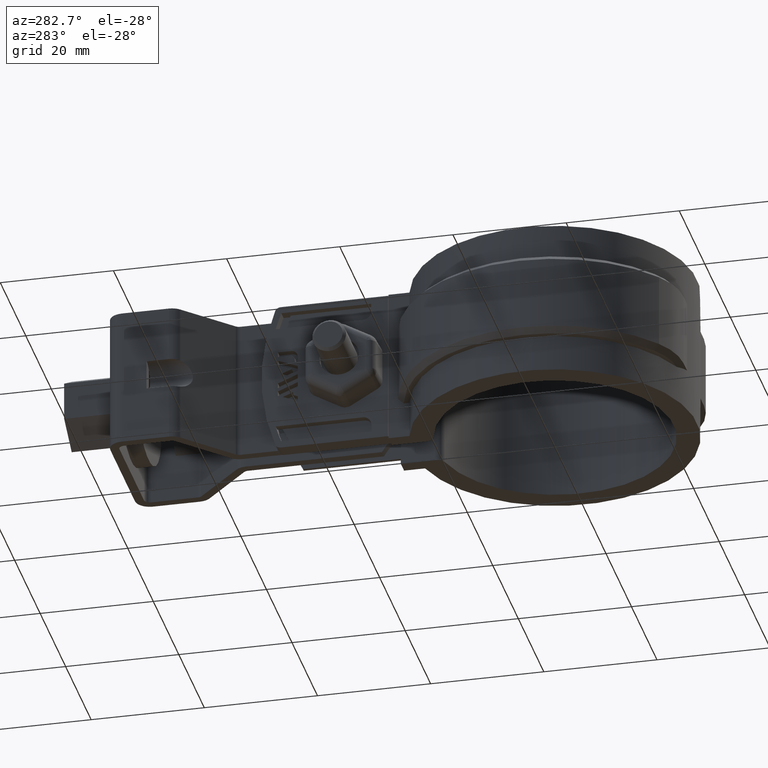
[diagram: clean part render]
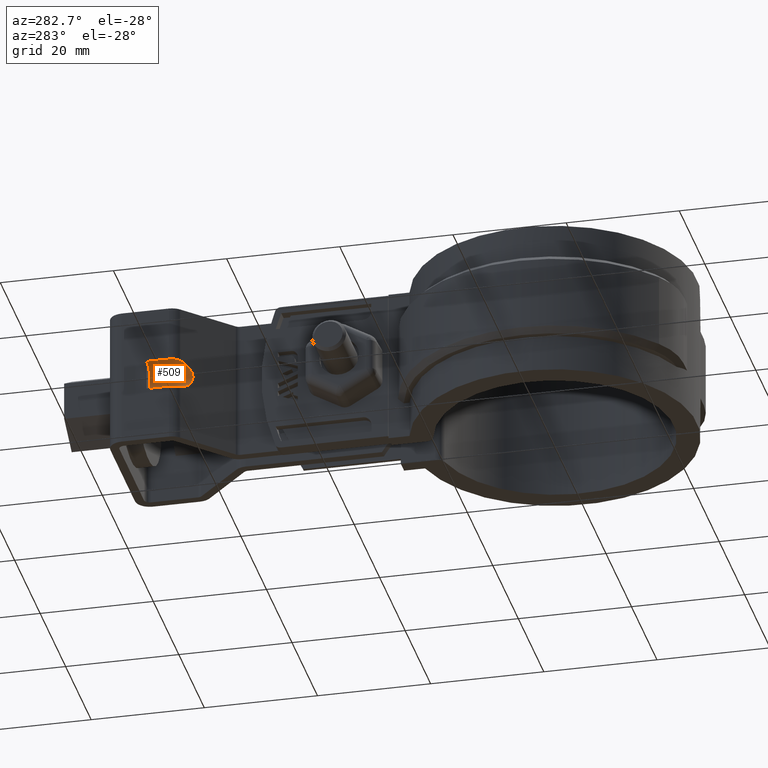
[diagram: same view with one face highlighted and labeled with its STEP entity id]
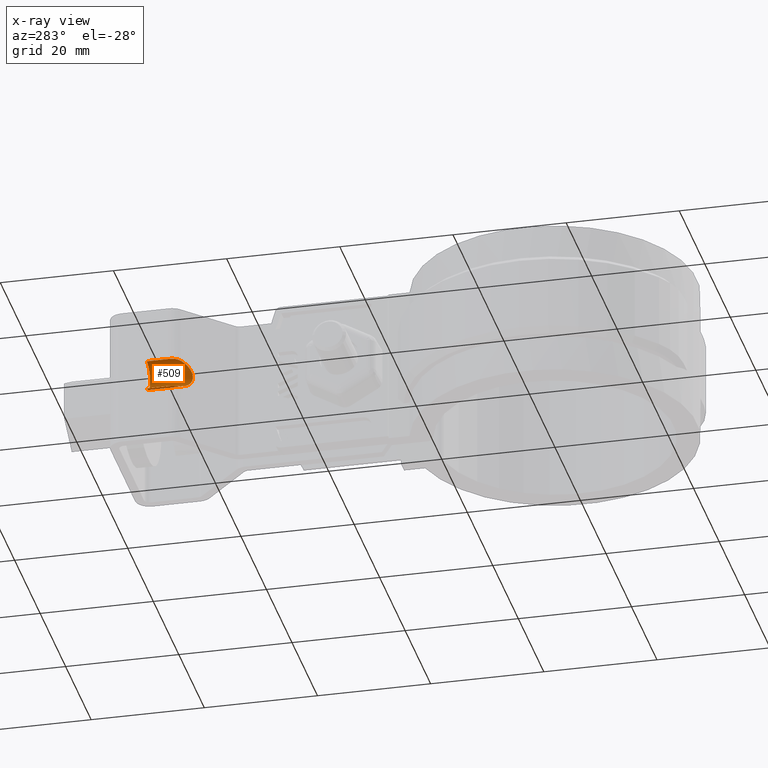
[diagram: x-ray of the same camera — body ghosted, the highlighted face saturated]
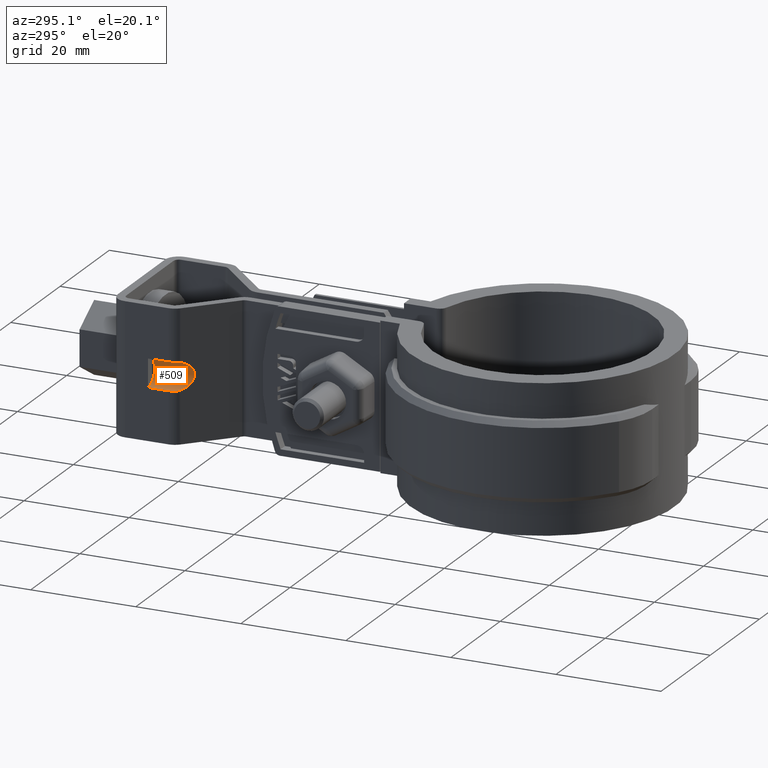
[diagram: same view with one face highlighted and labeled with its STEP entity id]
A machine part, auxiliary view. The second image highlights one B-rep face of the part: STEP entity #509.
The next image is the same camera in x-ray: the body ghosted, the highlighted face saturated — about 0% of this face is hidden behind the body in this view.
A second angle (auxiliary view) of the same face is appended — the face is thin or edge-on in the first view.
In plain terms, the highlighted cylindrical surface (edge-blend (fillet) strip) has radius 2.65 mm, axis along (0, -1, -0).
Its self-contained STEP definition (entity closure, byte-faithful):
#509 = ADVANCED_FACE( '', ( #999 ), #1000, .F. );
#999 = FACE_OUTER_BOUND( '', #2092, .T. );
#1000 = CYLINDRICAL_SURFACE( '', #2093, 2.64999999999997 );
#2092 = EDGE_LOOP( '', ( #4588, #4589, #4590, #4591, #4592, #4593, #4594, #4595 ) );
#2093 = AXIS2_PLACEMENT_3D( '', #4596, #4597, #4598 );
#4588 = ORIENTED_EDGE( '', *, *, #6569, .T. );
#4589 = ORIENTED_EDGE( '', *, *, #6570, .T. );
#4590 = ORIENTED_EDGE( '', *, *, #6571, .T. );
#4591 = ORIENTED_EDGE( '', *, *, #6572, .F. );
#4592 = ORIENTED_EDGE( '', *, *, #6567, .F. );
#4593 = ORIENTED_EDGE( '', *, *, #6573, .F. );
#4594 = ORIENTED_EDGE( '', *, *, #6574, .F. );
#4595 = ORIENTED_EDGE( '', *, *, #6575, .T. );
#4596 = CARTESIAN_POINT( '', ( -12.2499999999995, 59.4025110200040, -12.5000000000263 ) );
#4597 = DIRECTION( '', ( 9.21184560650170E-016, -1.00000000000000, -1.26121335597421E-013 ) );
#4598 = DIRECTION( '', ( 1.52568223233742E-014, -1.26121335597421E-013, 1.00000000000000 ) );
#6567 = EDGE_CURVE( '', #7795, #7797, #7798, .T. );
#6569 = EDGE_CURVE( '', #7800, #7801, #7802, .T. );
#6570 = EDGE_CURVE( '', #7801, #7803, #7804, .T. );
#6571 = EDGE_CURVE( '', #7803, #7805, #7806, .T. );
#6572 = EDGE_CURVE( '', #7797, #7805, #7807, .T. );
#6573 = EDGE_CURVE( '', #7808, #7795, #7809, .T. );
#6574 = EDGE_CURVE( '', #7810, #7808, #7811, .T. );
#6575 = EDGE_CURVE( '', #7810, #7800, #7812, .T. );
#7795 = VERTEX_POINT( '', #11224 );
#7797 = VERTEX_POINT( '', #11227 );
#7798 = CIRCLE( '', #11228, 2.64999999999997 );
#7800 = VERTEX_POINT( '', #11231 );
#7801 = VERTEX_POINT( '', #11232 );
#7802 = ELLIPSE( '', #11233, 3.70224472166266, 2.64999999999997 );
#7803 = VERTEX_POINT( '', #11234 );
#7804 = B_SPLINE_CURVE_WITH_KNOTS( '', 3, ( #11235, #11236, #11237, #11238, #11239, #11240, #11241, #11242 ), .UNSPECIFIED., .F., .F., ( 4, 2, 2, 4 ), ( 1.73472347597684E-018, 0.000516787748161289, 0.00103357549632258, 0.00206715099264519 ), .UNSPECIFIED. );
#7805 = VERTEX_POINT( '', #11243 );
#7806 = LINE( '', #11244, #11245 );
#7807 = CIRCLE( '', #11246, 2.64999999999997 );
#7808 = VERTEX_POINT( '', #11247 );
#7809 = CIRCLE( '', #11248, 2.64999999999997 );
#7810 = VERTEX_POINT( '', #11249 );
#7811 = LINE( '', #11250, #11251 );
#7812 = B_SPLINE_CURVE_WITH_KNOTS( '', 3, ( #11252, #11253, #11254, #11255, #11256, #11257, #11258, #11259, #11260, #11261 ), .UNSPECIFIED., .F., .F., ( 4, 2, 2, 2, 4 ), ( 0.000000000000000, 0.000517346174284565, 0.00103469234856913, 0.00155203852285370, 0.00206938469713826 ), .UNSPECIFIED. );
#11224 = CARTESIAN_POINT( '', ( -10.6499999999996, 69.4025110200043, -14.6124630174528 ) );
#11227 = CARTESIAN_POINT( '', ( -10.6499999999996, 69.4025110200038, -10.3875369825972 ) );
#11228 = AXIS2_PLACEMENT_3D( '', #13028, #13029, #13030 );
#11231 = CARTESIAN_POINT( '', ( -11.4656419723788, 63.6372837113706, -15.0312610463240 ) );
#11232 = CARTESIAN_POINT( '', ( -11.4656419723789, 63.6372837113700, -9.96873895372749 ) );
#11233 = AXIS2_PLACEMENT_3D( '', #13032, #13033, #13034 );
#11234 = CARTESIAN_POINT( '', ( -12.2499999999996, 65.4983168191180, -9.85000000002553 ) );
#11235 = CARTESIAN_POINT( '', ( -11.4656419723789, 63.6372837113700, -9.96873895372748 ) );
#11236 = CARTESIAN_POINT( '', ( -11.5880007594306, 63.7566581322416, -9.93082382165751 ) );
#11237 = CARTESIAN_POINT( '', ( -11.6979909725811, 63.8873570976110, -9.90626133021580 ) );
#11238 = CARTESIAN_POINT( '', ( -11.8919853000431, 64.1705517184763, -9.87244986192481 ) );
#11239 = CARTESIAN_POINT( '', ( -11.9765770457455, 64.3248769170093, -9.86327473214268 ) );
#11240 = CARTESIAN_POINT( '', ( -12.1789956025114, 64.8027098488494, -9.84749564067766 ) );
#11241 = CARTESIAN_POINT( '', ( -12.2499999999996, 65.1487749770708, -9.85000000002558 ) );
#11242 = CARTESIAN_POINT( '', ( -12.2499999999996, 65.4983168191180, -9.85000000002553 ) );
#11243 = CARTESIAN_POINT( '', ( -12.2499999999996, 69.4025110200037, -9.85000000002503 ) );
#11244 = CARTESIAN_POINT( '', ( -12.2499999999996, 59.4025110200037, -9.85000000002630 ) );
#11245 = VECTOR( '', #13035, 1000.00000000000 );
#11246 = AXIS2_PLACEMENT_3D( '', #13036, #13037, #13038 );
#11247 = CARTESIAN_POINT( '', ( -12.2499999999996, 69.4025110200043, -15.1500000000250 ) );
#11248 = AXIS2_PLACEMENT_3D( '', #13039, #13040, #13041 );
#11249 = CARTESIAN_POINT( '', ( -12.2499999999995, 65.4983168191187, -15.1500000000255 ) );
#11250 = CARTESIAN_POINT( '', ( -12.2499999999995, 59.4025110200043, -15.1500000000262 ) );
#11251 = VECTOR( '', #13042, 1000.00000000000 );
#11252 = CARTESIAN_POINT( '', ( -12.2499999999995, 65.4983168191187, -15.1500000000255 ) );
#11253 = CARTESIAN_POINT( '', ( -12.2499999999995, 65.3234267548705, -15.1500000000255 ) );
#11254 = CARTESIAN_POINT( '', ( -12.2325330354078, 65.1514843469649, -15.1501636960303 ) );
#11255 = CARTESIAN_POINT( '', ( -12.1640563524471, 64.8132691569568, -15.1488273632033 ) );
#11256 = CARTESIAN_POINT( '', ( -12.1121297117025, 64.6451383086748, -15.1472759528903 ) );
#11257 = CARTESIAN_POINT( '', ( -11.9772119360844, 64.3261048534409, -15.1367906362340 ) );
#11258 = CARTESIAN_POINT( '', ( -11.8947254704606, 64.1750936340896, -15.1279277835084 ) );
#11259 = CARTESIAN_POINT( '', ( -11.7003962036486, 63.8903406242711, -15.0942552098260 ) );
#11260 = CARTESIAN_POINT( '', ( -11.5880224298576, 63.7566792741214, -15.0691828933763 ) );
#11261 = CARTESIAN_POINT( '', ( -11.4656419723788, 63.6372837113706, -15.0312610463240 ) );
#13028 = CARTESIAN_POINT( '', ( -12.2499999999995, 69.4025110200040, -12.5000000000250 ) );
#13029 = DIRECTION( '', ( 9.21184560650170E-016, -1.00000000000000, -1.26121335597421E-013 ) );
#13030 = DIRECTION( '', ( -6.34539454728065E-015, -1.26121335597421E-013, 1.00000000000000 ) );
#13032 = CARTESIAN_POINT( '', ( -12.2499999999995, 64.4025110200042, -12.5000000000256 ) );
#13033 = DIRECTION( '', ( -0.698323835530498, -0.715781964518507, -9.42898977778803E-014 ) );
#13034 = DIRECTION( '', ( -0.715781964518507, 0.698323835530498, 8.39586511996701E-014 ) );
#13035 = DIRECTION( '', ( -9.21184560650170E-016, 1.00000000000000, 1.26121335597421E-013 ) );
#13036 = CARTESIAN_POINT( '', ( -12.2499999999995, 69.4025110200040, -12.5000000000250 ) );
#13037 = DIRECTION( '', ( 9.21184560650170E-016, -1.00000000000000, -1.26121335597421E-013 ) );
#13038 = DIRECTION( '', ( -6.34539454728065E-015, -1.26121335597421E-013, 1.00000000000000 ) );
#13039 = CARTESIAN_POINT( '', ( -12.2499999999995, 69.4025110200040, -12.5000000000250 ) );
#13040 = DIRECTION( '', ( 9.21184560650170E-016, -1.00000000000000, -1.26121335597421E-013 ) );
#13041 = DIRECTION( '', ( -6.34539454728065E-015, -1.26121335597421E-013, 1.00000000000000 ) );
#13042 = DIRECTION( '', ( -9.21184560650170E-016, 1.00000000000000, 1.26121335597421E-013 ) );